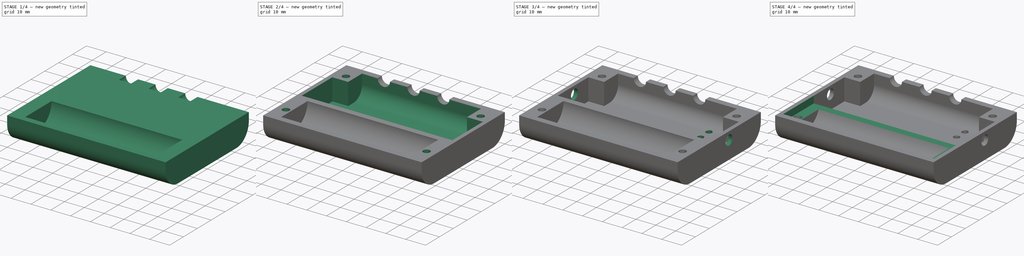
[diagram: build sequence overview — one tinted view per stage of 4, left to right]
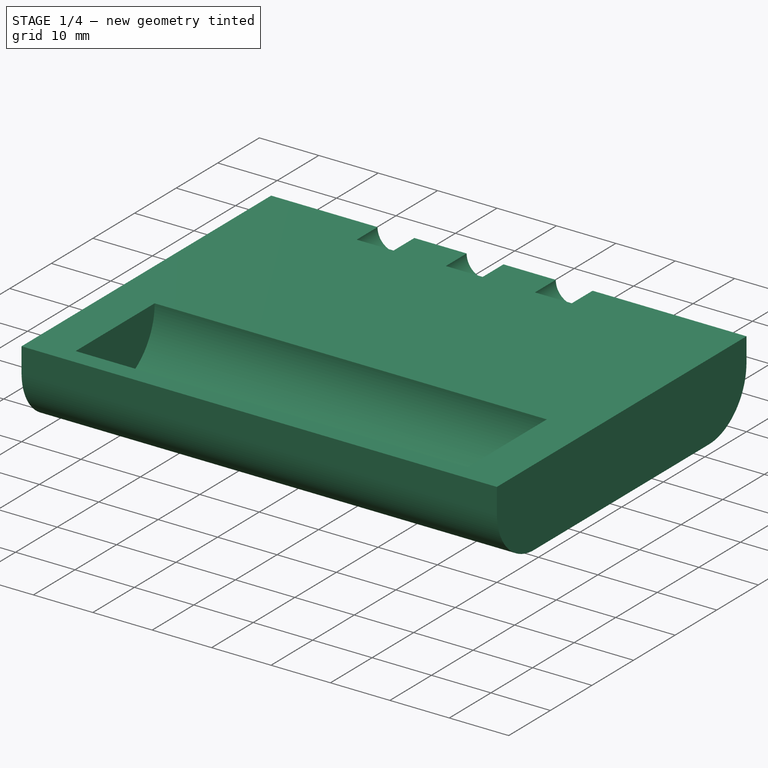
[diagram: stage 1 of 4 — iso view after this stage's code; geometry added in this stage tinted green]
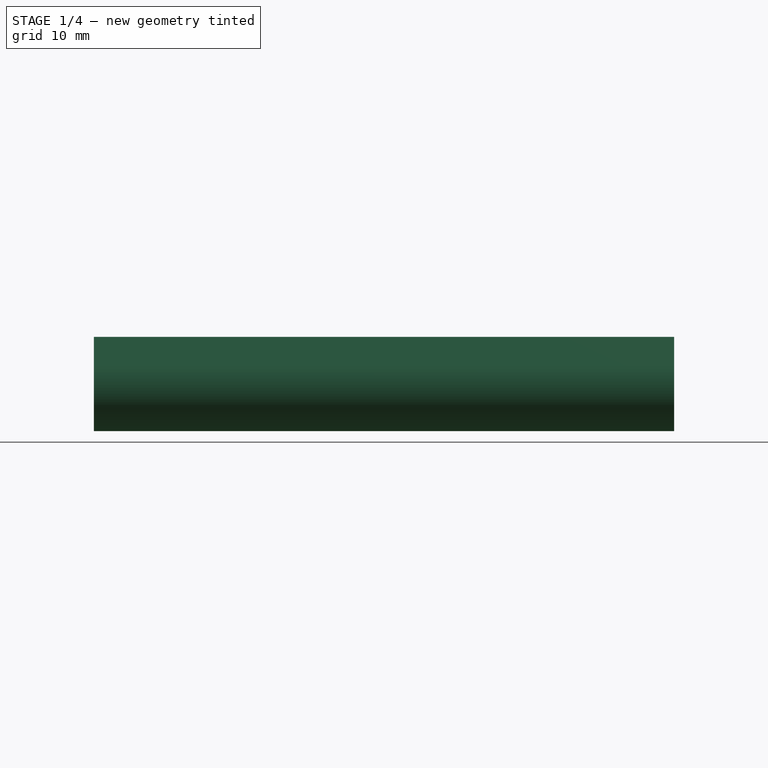
[diagram: stage 1 of 4 — front view after this stage's code; geometry added in this stage tinted green]
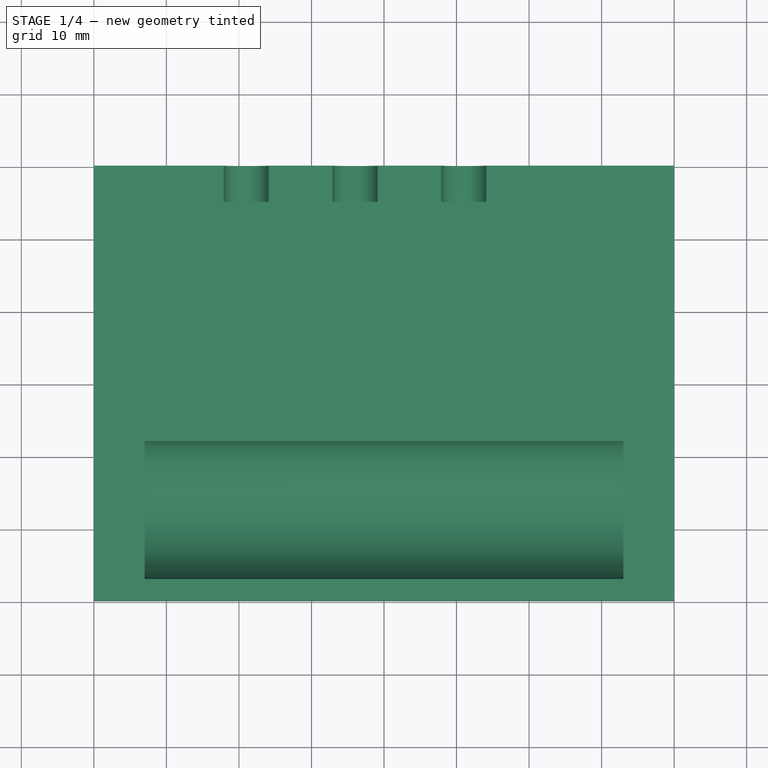
[diagram: stage 1 of 4 — top view after this stage's code; geometry added in this stage tinted green]
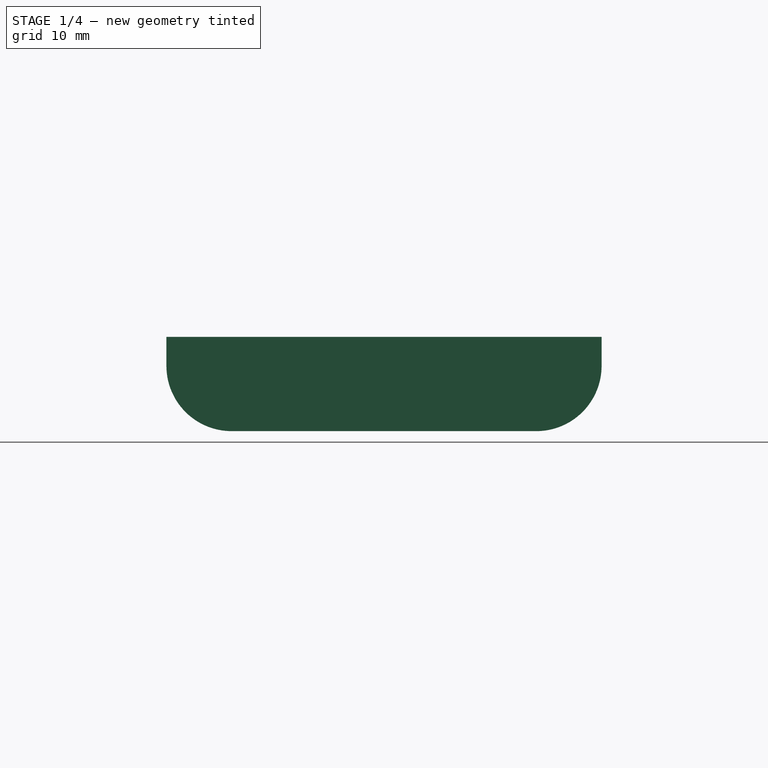
[diagram: stage 1 of 4 — right view after this stage's code; geometry added in this stage tinted green]
FCSTD DOCUMENT  (FreeCAD 0.20R29603 (Git))
Label: OBUDOWA_goraa
License: All rights reserved
LicenseURL: http://en.wikipedia.org/wiki/All_rights_reserved
objects: Sketcher::SketchObject×12, PartDesign::Pocket×11, PartDesign::Pad×1, PartDesign::Body×1
note: 37 computed .brp shape members not serialized (recipe doc carries the construction recipe); baked Part::Feature solids carry a one-line shape summary decoded from their .brp

FEATURE [Sketcher::SketchObject] Sketch
  FullyConstrained = true
  MapMode = 5
  Placement = pos=(0,0,0) rot=(0.57735,0.57735,0.57735;2.0944rad)
  Support = -> [YZ_Plane]
  sketch-geometry (6):
    g0: LineSegment StartX=1.07e-14 StartY=0 StartZ=0 EndX=60 EndY=0 EndZ=0
    g1: LineSegment StartX=60 StartY=0 StartZ=0 EndX=60 EndY=-4 EndZ=0
    g2: LineSegment StartX=51 StartY=-13 StartZ=0 EndX=9 EndY=-13 EndZ=0
    g3: LineSegment StartX=1.07e-14 StartY=-4 StartZ=0 EndX=1.07e-14 EndY=0 EndZ=0
    g4: ArcOfCircle CenterX=51 CenterY=-4 CenterZ=0 NormalX=0 NormalY=0 NormalZ=1 AngleXU=0 Radius=9 StartAngle=4.71239 EndAngle=6.28319
    g5: ArcOfCircle CenterX=9 CenterY=-4 CenterZ=0 NormalX=0 NormalY=0 NormalZ=1 AngleXU=0 Radius=9 StartAngle=3.14159 EndAngle=4.71239
  constraints (15):
    c: Coincident(g0,g1)
    c: Coincident(g3,g0)
    c: Horizontal(g0)
    c: Horizontal(g2)
    c: Vertical(g1)
    c: Vertical(g3)
    c: Coincident(g0,g-1)
    c: DistanceX(g0,g0) = 60
    c: Tangent(g1,g4) = 1.5708
    c: Tangent(g2,g4) = 1.5708
    c: Tangent(g2,g5) = 1.5708
    c: Tangent(g3,g5) = 1.5708
    c: DistanceY(g3,g3) = 4
    c: DistanceY(g1,g1) = 4
    c: Radius(g4) = 9
FEATURE [PartDesign::Pad] Pad
  Direction = (1,-2e-16,3e-16)
  Length = 80
  Length2 = 10
  Placement = pos=(0,0,0) rot=(0.57735,0.57735,0.57735;2.0944rad)
  Profile = -> Sketch
  ReferenceAxis = -> Sketch [N_Axis]
  Type = 0
FEATURE [Sketcher::SketchObject] Sketch001
  FullyConstrained = true
  MapMode = 5
  Placement = pos=(80,-1.76e-14,1.76e-14) rot=(0.57735,0.57735,0.57735;2.0944rad)
  Support = -> [Pad]
  sketch-geometry (1):
    g0: Circle CenterX=12.5 CenterY=0 CenterZ=0 NormalX=0 NormalY=0 NormalZ=1 AngleXU=0 Radius=9.5
  constraints (3):
    c: PointOnObject(g0,g-1)
    c: Diameter(g0) = 19
    c: DistanceX(g-1,g0) = 12.5
FEATURE [PartDesign::Pocket] Pocket  label="Bateria"
  BaseFeature = -> Pad
  Direction = (-1,2e-16,-2e-16)
  Length = 73
  Length2 = -7
  Placement = pos=(0,0,0) rot=(0.57735,0.57735,0.57735;2.0944rad)
  Profile = -> Sketch001
  ReferenceAxis = -> Sketch001 [N_Axis]
  Type = 4
FEATURE [Sketcher::SketchObject] Sketch007
  FullyConstrained = true
  MapMode = 5
  Placement = pos=(3.3e-14,60,-1.3e-14) rot=(0.57735,0.57735,0.57735;4.18879rad)
  sketch-geometry (3):
    g0: Circle CenterX=0 CenterY=51 CenterZ=0 NormalX=0 NormalY=0 NormalZ=1 AngleXU=0 Radius=3.1
    g1: Circle CenterX=0 CenterY=36 CenterZ=0 NormalX=0 NormalY=0 NormalZ=1 AngleXU=0 Radius=3.1
    g2: Circle CenterX=0 CenterY=21 CenterZ=0 NormalX=0 NormalY=0 NormalZ=1 AngleXU=0 Radius=3.1
  constraints (9):
    c: PointOnObject(g0,g-2)
    c: PointOnObject(g1,g-2)
    c: PointOnObject(g2,g-2)
    c: DistanceY(g1,g0) = 15
    c: DistanceY(g2,g1) = 15
    c: Diameter(g0) = 6.2
    c: Diameter(g1) = 6.2
    c: Diameter(g2) = 6.2
    c: DistanceY(g-1,g2) = 21
FEATURE [PartDesign::Pocket] Pocket005
  BaseFeature = -> Pocket
  Direction = (0,-1,0)
  Length = 5
  Length2 = 5
  Placement = pos=(0,0,0) rot=(0.57735,0.57735,0.57735;2.0944rad)
  Profile = -> Sketch007
  ReferenceAxis = -> Sketch007 [N_Axis]
  Type = 0
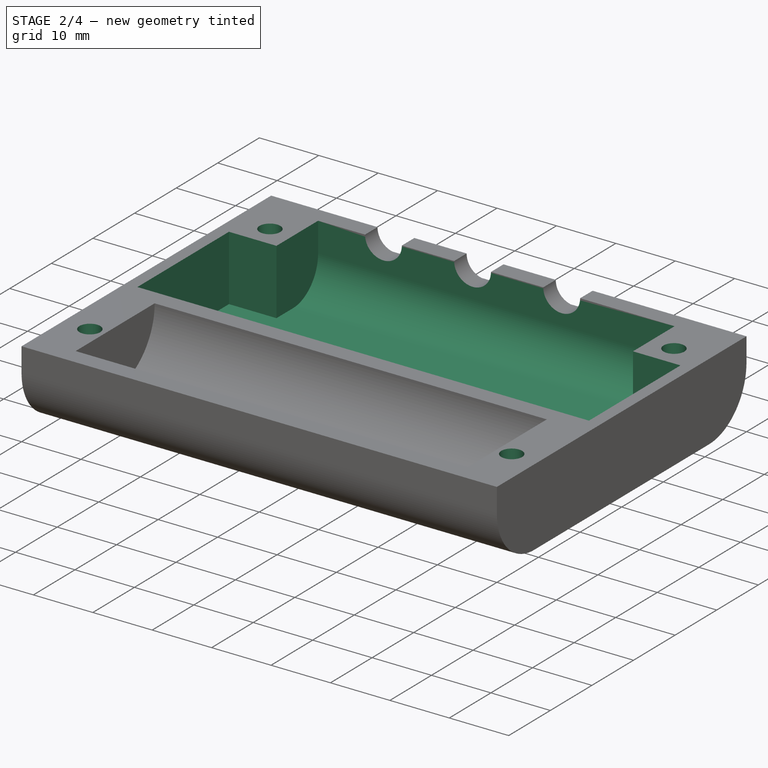
[diagram: stage 2 of 4 — iso view after this stage's code; geometry added in this stage tinted green]
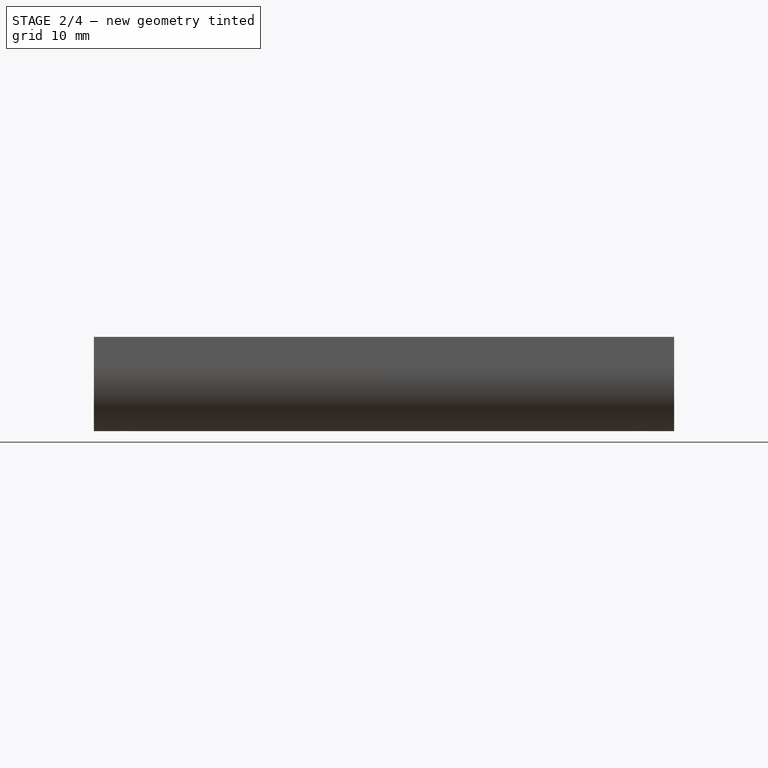
[diagram: stage 2 of 4 — front view after this stage's code; geometry added in this stage tinted green]
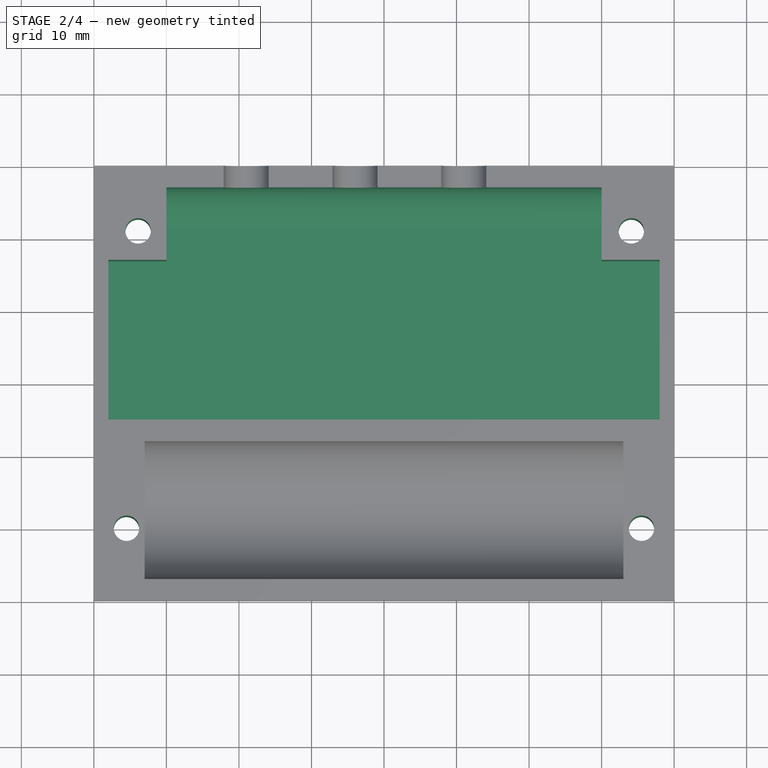
[diagram: stage 2 of 4 — top view after this stage's code; geometry added in this stage tinted green]
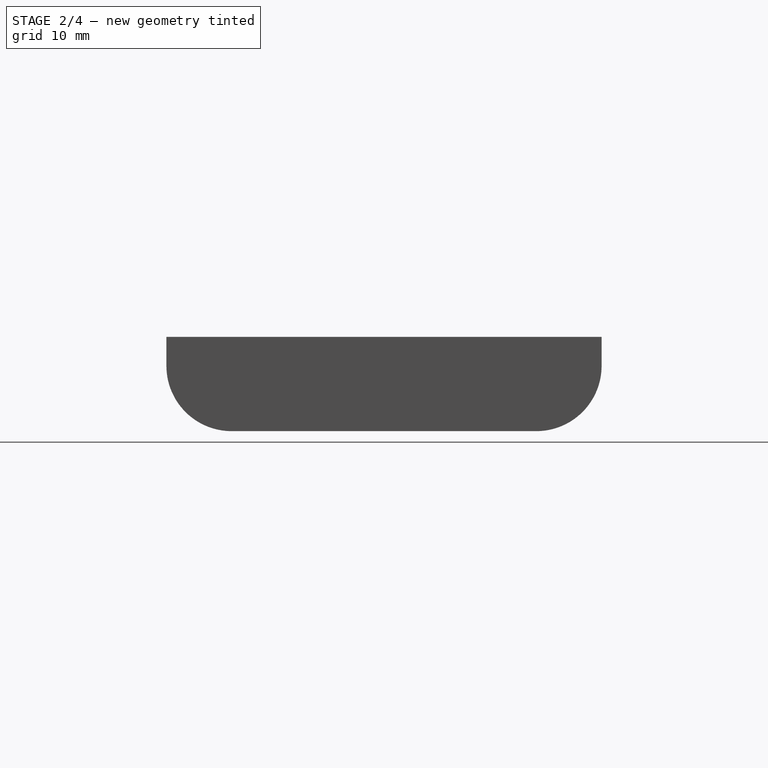
[diagram: stage 2 of 4 — right view after this stage's code; geometry added in this stage tinted green]
FEATURE [Sketcher::SketchObject] Sketch008
  ExternalGeometry = -> [Pocket005]
  FullyConstrained = true
  MapMode = 5
  Placement = pos=(80,-1.76e-14,1.76e-14) rot=(0.57735,0.57735,0.57735;2.0944rad)
  Support = -> [Pocket005]
  sketch-geometry (5):
    g0: LineSegment StartX=57 StartY=0 StartZ=0 EndX=25 EndY=0 EndZ=0
    g1: LineSegment StartX=25 StartY=0 StartZ=0 EndX=25 EndY=-11 EndZ=0
    g2: LineSegment StartX=25 StartY=-11 StartZ=0 EndX=51 EndY=-11 EndZ=0
    g3: LineSegment StartX=57 StartY=-5 StartZ=0 EndX=57 EndY=0 EndZ=0
    g4: ArcOfCircle CenterX=51 CenterY=-5 CenterZ=0 NormalX=0 NormalY=0 NormalZ=1 AngleXU=0 Radius=6 StartAngle=4.71239 EndAngle=6.28319
  constraints (14):
    c: Coincident(g0,g1)
    c: Coincident(g1,g2)
    c: Coincident(g3,g0)
    c: Horizontal(g0)
    c: Horizontal(g2)
    c: Vertical(g1)
    c: Vertical(g3)
    c: PointOnObject(g0,g-1)
    c: DistanceX(g0,g-3) = 3
    c: DistanceY(g-4,g1) = 2
    c: Tangent(g3,g4) = -1.5708
    c: Tangent(g2,g4) = -1.5708
    c: Radius(g4) = 6
    c: DistanceX(g0,g0) = 32
FEATURE [PartDesign::Pocket] Pocket006
  BaseFeature = -> Pocket005
  Direction = (-1,2e-16,-2e-16)
  Length = 70
  Length2 = -10
  Placement = pos=(0,0,0) rot=(0.57735,0.57735,0.57735;2.0944rad)
  Profile = -> Sketch008
  ReferenceAxis = -> Sketch008 [N_Axis]
  Type = 4
FEATURE [Sketcher::SketchObject] Sketch009
  ExternalGeometry = -> [Pocket006]
  FullyConstrained = true
  MapMode = 5
  Placement = pos=(0,0,0) rot=(0,0,-1;1.5708rad)
  Support = -> [Pocket006]
  sketch-geometry (4):
    g0: Circle CenterX=-51 CenterY=74.1 CenterZ=0 NormalX=0 NormalY=0 NormalZ=1 AngleXU=0 Radius=1.75
    g1: Circle CenterX=-10 CenterY=75.5 CenterZ=0 NormalX=0 NormalY=0 NormalZ=1 AngleXU=0 Radius=1.75
    g2: Circle CenterX=-51 CenterY=6.1 CenterZ=0 NormalX=0 NormalY=0 NormalZ=1 AngleXU=0 Radius=1.75
    g3: Circle CenterX=-10 CenterY=4.5 CenterZ=0 NormalX=0 NormalY=0 NormalZ=1 AngleXU=0 Radius=1.75
  constraints (12):
    c: Diameter(g2) = 3.5
    c: Diameter(g3) = 3.5
    c: Diameter(g0) = 3.5
    c: Diameter(g1) = 3.5
    c: DistanceX(g-3,g0) = 9
    c: DistanceX(g1,g-5) = 10
    c: DistanceX(g3,g-5) = 10
    c: DistanceY(g-5,g3) = 4.5
    c: DistanceY(g1,g-5) = 4.5
    c: DistanceY(g0,g-3) = 5.9
    c: DistanceY(g2,g0) = 68
    c: DistanceX(g-4,g2) = 9
FEATURE [PartDesign::Pocket] Pocket007  label="Otworsruby"
  BaseFeature = -> Pocket006
  Direction = (3e-16,-6e-16,-1)
  Length = 5
  Length2 = 5
  Placement = pos=(0,0,0) rot=(0.57735,0.57735,0.57735;2.0944rad)
  Profile = -> Sketch009
  ReferenceAxis = -> Sketch009 [N_Axis]
  Type = 1
FEATURE [Sketcher::SketchObject] Sketch010
  ExternalGeometry = -> [Pocket007]
  FullyConstrained = true
  MapMode = 5
  Placement = pos=(0,0,0) rot=(0,0,-1;1.5708rad)
  Support = -> [Pocket007]
  sketch-geometry (8):
    g0: LineSegment StartX=-25 StartY=70 StartZ=0 EndX=-47 EndY=70 EndZ=0
    g1: LineSegment StartX=-47 StartY=70 StartZ=0 EndX=-47 EndY=78 EndZ=0
    g2: LineSegment StartX=-47 StartY=78 StartZ=0 EndX=-25 EndY=78 EndZ=0
    g3: LineSegment StartX=-25 StartY=78 StartZ=0 EndX=-25 EndY=70 EndZ=0
    g4: LineSegment StartX=-25 StartY=10 StartZ=0 EndX=-47 EndY=10 EndZ=0
    g5: LineSegment StartX=-47 StartY=10 StartZ=0 EndX=-47 EndY=2 EndZ=0
    g6: LineSegment StartX=-47 StartY=2 StartZ=0 EndX=-25 EndY=2 EndZ=0
    g7: LineSegment StartX=-25 StartY=2 StartZ=0 EndX=-25 EndY=10 EndZ=0
  constraints (22):
    c: Coincident(g0,g1)
    c: Coincident(g1,g2)
    c: Coincident(g2,g3)
    c: Coincident(g3,g0)
    c: Horizontal(g0)
    c: Horizontal(g2)
    c: Vertical(g1)
    c: Vertical(g3)
    c: Coincident(g0,g-3)
    c: Coincident(g4,g5)
    c: Coincident(g5,g6)
    c: Coincident(g6,g7)
    c: Coincident(g7,g4)
    c: Horizontal(g4)
    c: Horizontal(g6)
    c: Vertical(g5)
    c: Vertical(g7)
    c: Coincident(g4,g-4)
    c: DistanceX(g4,g4) = 22
    c: DistanceX(g2,g2) = 22
    c: DistanceY(g1,g-5) = 2
    c: DistanceY(g-6,g5) = 2
FEATURE [PartDesign::Pocket] Pocket008
  BaseFeature = -> Pocket007
  Direction = (3e-16,-7e-16,-1)
  Length = 11
  Length2 = 5
  Placement = pos=(0,0,0) rot=(0.57735,0.57735,0.57735;2.0944rad)
  Profile = -> Sketch010
  ReferenceAxis = -> Sketch010 [N_Axis]
  Type = 0
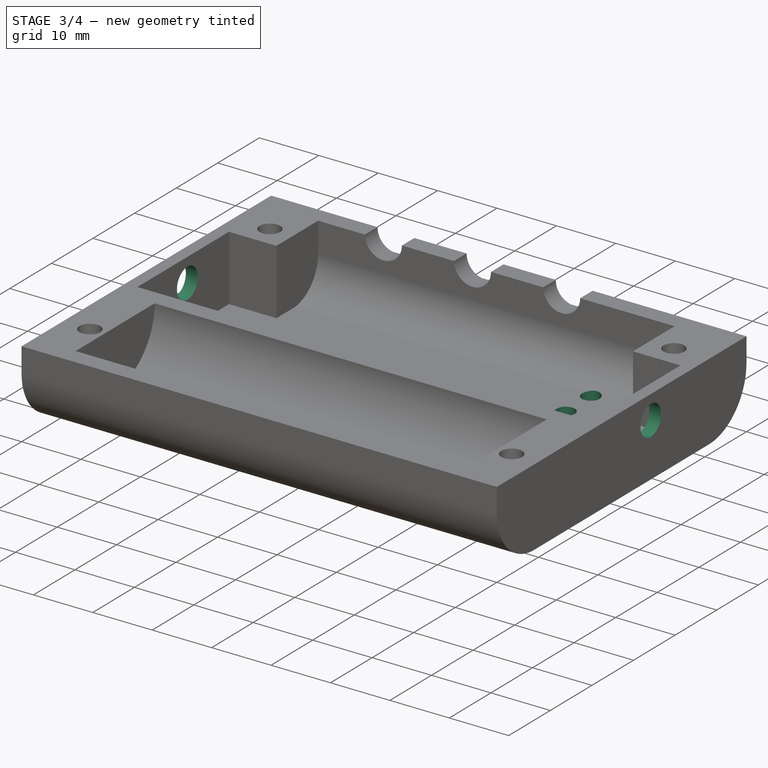
[diagram: stage 3 of 4 — iso view after this stage's code; geometry added in this stage tinted green]
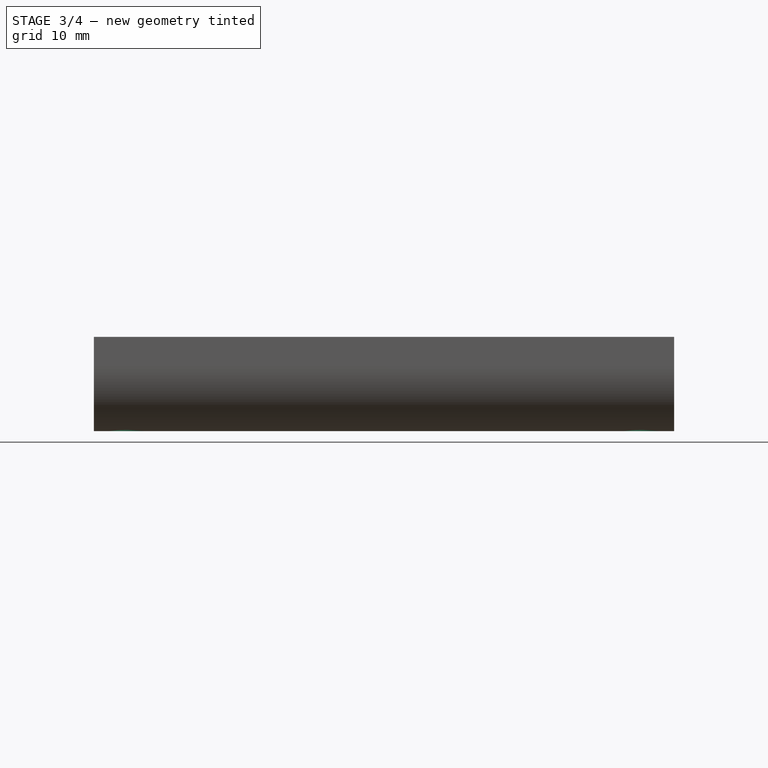
[diagram: stage 3 of 4 — front view after this stage's code; geometry added in this stage tinted green]
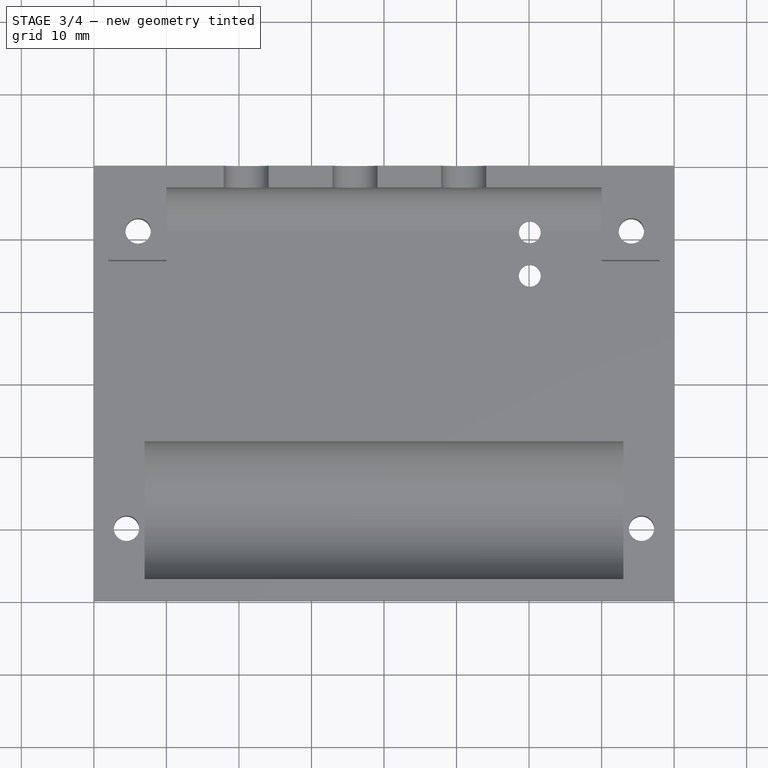
[diagram: stage 3 of 4 — top view after this stage's code; geometry added in this stage tinted green]
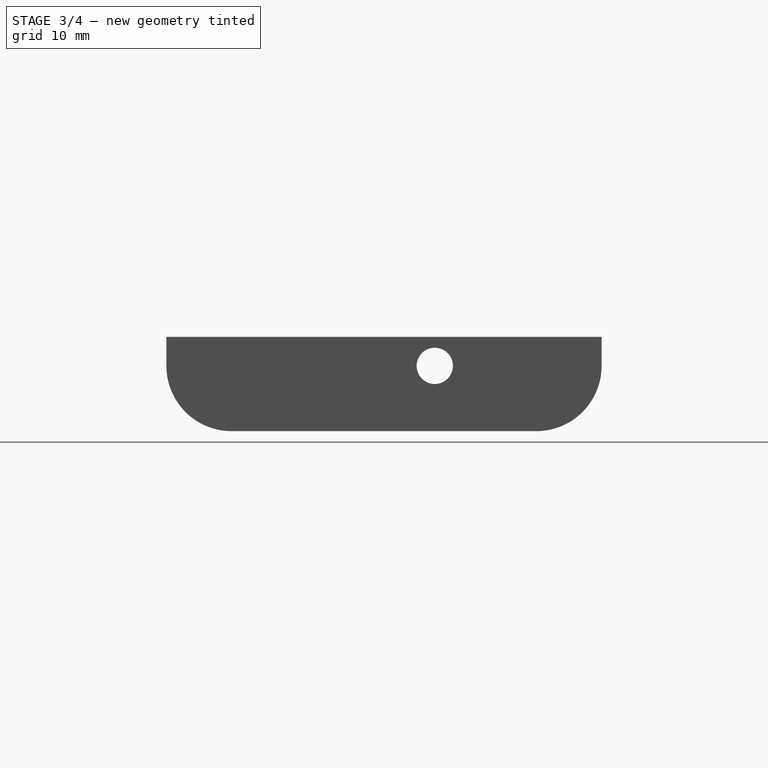
[diagram: stage 3 of 4 — right view after this stage's code; geometry added in this stage tinted green]
FEATURE [Sketcher::SketchObject] Sketch011
  ExternalGeometry = -> [Pocket008]
  FullyConstrained = true
  MapMode = 5
  Placement = pos=(3.6e-15,-5.7e-15,-13) rot=(0.707107,0.707107,0;3.14159rad)
  Support = -> [Pocket008]
  sketch-geometry (2):
    g0: Circle CenterX=51 CenterY=60.1 CenterZ=0 NormalX=0 NormalY=0 NormalZ=1 AngleXU=0 Radius=1.5
    g1: Circle CenterX=45 CenterY=60.1 CenterZ=0 NormalX=0 NormalY=0 NormalZ=1 AngleXU=0 Radius=1.5
  constraints (6):
    c: Diameter(g0) = 3
    c: Diameter(g1) = 3
    c: DistanceY(g0,g-3) = 14
    c: DistanceX(g0,g-3) = 0
    c: DistanceX(g1,g0) = 6
    c: DistanceY(g1,g-3) = 14
FEATURE [PartDesign::Pocket] Pocket009
  BaseFeature = -> Pocket008
  Direction = (-3e-16,7e-16,1)
  Length = 5
  Length2 = 5
  Placement = pos=(0,0,0) rot=(0.57735,0.57735,0.57735;2.0944rad)
  Profile = -> Sketch011
  ReferenceAxis = -> Sketch011 [N_Axis]
  Type = 0
FEATURE [Sketcher::SketchObject] Sketch012
  ExternalGeometry = -> [Pocket009]
  FullyConstrained = true
  MapMode = 5
  Placement = pos=(3.6e-15,-5.7e-15,-13) rot=(0.707107,0.707107,0;3.14159rad)
  Support = -> [Pocket009]
  sketch-geometry (4):
    g0: Circle CenterX=51 CenterY=6.1 CenterZ=0 NormalX=0 NormalY=0 NormalZ=1 AngleXU=0 Radius=2.75
    g1: Circle CenterX=10 CenterY=4.5 CenterZ=0 NormalX=0 NormalY=0 NormalZ=1 AngleXU=0 Radius=2.75
    g2: Circle CenterX=10 CenterY=75.5 CenterZ=0 NormalX=0 NormalY=0 NormalZ=1 AngleXU=0 Radius=2.75
    g3: Circle CenterX=51 CenterY=74.1 CenterZ=0 NormalX=0 NormalY=0 NormalZ=1 AngleXU=0 Radius=2.75
  constraints (8):
    c: Coincident(g0,g-5)
    c: Coincident(g1,g-6)
    c: Coincident(g2,g-4)
    c: Coincident(g3,g-3)
    c: Diameter(g3) = 5.5
    c: Diameter(g2) = 5.5
    c: Diameter(g1) = 5.5
    c: Diameter(g0) = 5.5
FEATURE [PartDesign::Pocket] Pocket010  label="Labki M3"
  BaseFeature = -> Pocket009
  Direction = (-3e-16,4e-16,1)
  Length = 3
  Length2 = 5
  Placement = pos=(0,0,0) rot=(0.57735,0.57735,0.57735;2.0944rad)
  Profile = -> Sketch012
  ReferenceAxis = -> Sketch012 [N_Axis]
  Type = 0
FEATURE [Sketcher::SketchObject] Sketch013
  ExternalGeometry = -> [Pocket010]
  FullyConstrained = true
  MapMode = 5
  Placement = pos=(1.4e-15,0,0) rot=(0.57735,0.57735,-0.57735;4.18879rad)
  Support = -> [Pocket010]
  sketch-geometry (1):
    g0: Circle CenterX=37 CenterY=4 CenterZ=0 NormalX=0 NormalY=0 NormalZ=1 AngleXU=0 Radius=2.5
  constraints (3):
    c: DistanceX(g0,g-3) = 23
    c: DistanceY(g-3,g0) = 4
    c: Diameter(g0) = 5
FEATURE [PartDesign::Pocket] Pocket011
  BaseFeature = -> Pocket010
  Direction = (1,-2e-16,2e-16)
  Length = 5
  Length2 = 5
  Placement = pos=(0,0,0) rot=(0.57735,0.57735,0.57735;2.0944rad)
  Profile = -> Sketch013
  ReferenceAxis = -> Sketch013 [N_Axis]
  Type = 1
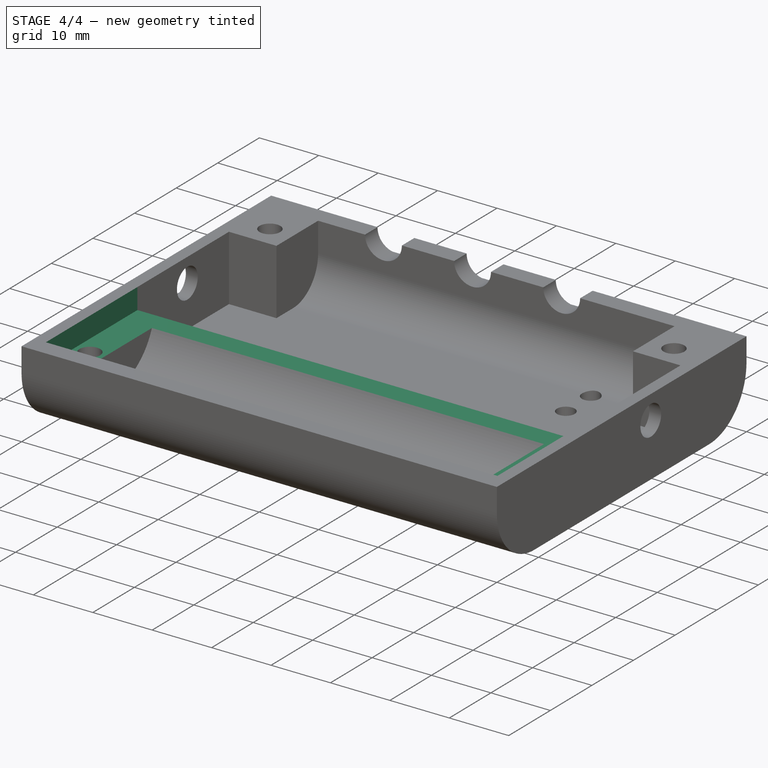
[diagram: stage 4 of 4 — iso view after this stage's code; geometry added in this stage tinted green]
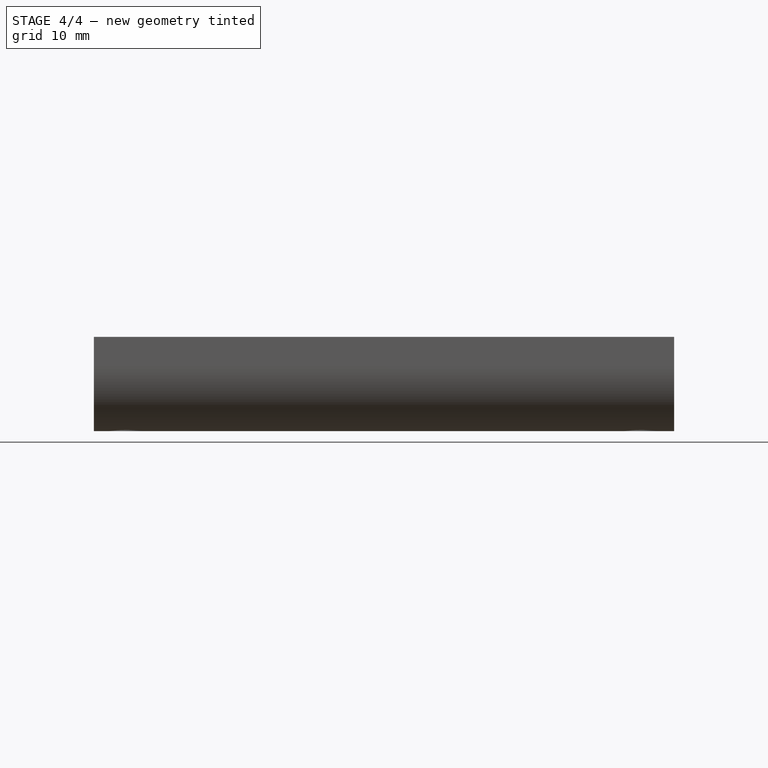
[diagram: stage 4 of 4 — front view after this stage's code; geometry added in this stage tinted green]
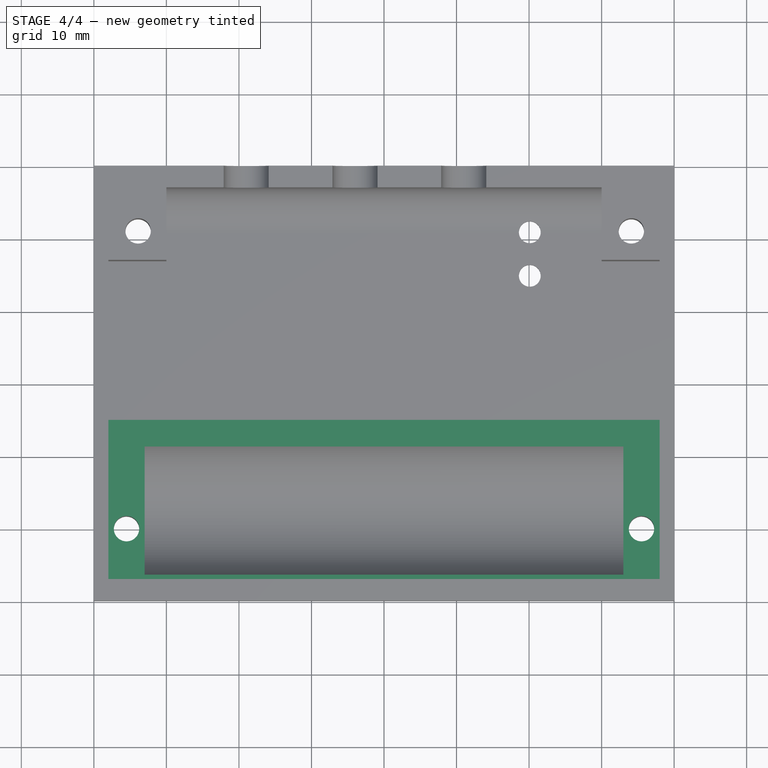
[diagram: stage 4 of 4 — top view after this stage's code; geometry added in this stage tinted green]
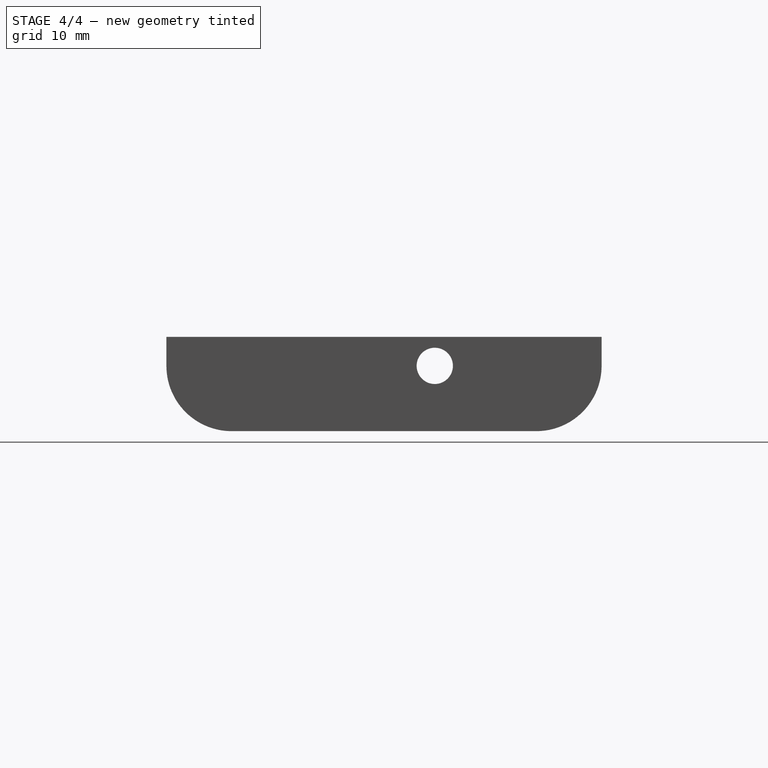
[diagram: stage 4 of 4 — right view after this stage's code; geometry added in this stage tinted green]
FEATURE [Sketcher::SketchObject] Sketch014
  FullyConstrained = true
  MapMode = 5
  Placement = pos=(2.7e-15,0,0) rot=(0.57735,0.57735,-0.57735;4.18879rad)
  Support = -> [Pocket011]
  sketch-geometry (5):
    g0: LineSegment StartX=3 StartY=-3.5 StartZ=0 EndX=3 EndY=3.5 EndZ=0
    g1: LineSegment StartX=3 StartY=3.5 StartZ=0 EndX=26 EndY=3.5 EndZ=0
    g2: LineSegment StartX=26 StartY=3.5 StartZ=0 EndX=26 EndY=-3.5 EndZ=0
    g3: LineSegment StartX=26 StartY=-3.5 StartZ=0 EndX=3 EndY=-3.5 EndZ=0
    g4: GeomPoint X=14.5 Y=0 Z=0
  constraints (13):
    c: Coincident(g0,g1)
    c: Coincident(g1,g2)
    c: Coincident(g2,g3)
    c: Coincident(g3,g0)
    c: Horizontal(g1)
    c: Horizontal(g3)
    c: Vertical(g0)
    c: Vertical(g2)
    c: Symmetric(g1,g0,g4)
    c: PointOnObject(g4,g-1)
    c: DistanceX(g-1,g4) = 14.5
    c: DistanceX(g1,g1) = 23
    c: DistanceY(g2,g2) = 7
FEATURE [PartDesign::Pocket] Pocket012
  BaseFeature = -> Pocket011
  Direction = (1,-2e-16,2e-16)
  Length = 78
  Length2 = -2
  Placement = pos=(0,0,0) rot=(0.57735,0.57735,0.57735;2.0944rad)
  Profile = -> Sketch014
  ReferenceAxis = -> Sketch014 [N_Axis]
  Type = 4
FEATURE [Sketcher::SketchObject] Sketch015
  ExternalGeometry = -> [Pocket012]
  FullyConstrained = true
  MapMode = 5
  Placement = pos=(3.6e-15,-7.9e-15,-13) rot=(0.707107,0.707107,0;3.14159rad)
  Support = -> [Pocket012]
  sketch-geometry (3):
    g0: LineSegment StartX=43.5 StartY=57.6981 StartZ=0 EndX=45 EndY=55.1 EndZ=0
    g1: LineSegment StartX=45 StartY=55.1 StartZ=0 EndX=46.5 EndY=57.6981 EndZ=0
    g2: LineSegment StartX=46.5 StartY=57.6981 StartZ=0 EndX=43.5 EndY=57.6981 EndZ=0
  constraints (9):
    c: Coincident(g1,g0)
    c: Coincident(g2,g1)
    c: Coincident(g2,g0)
    c: Horizontal(g2)
    c: DistanceX(g2,g2) = 3
    c: Distance(g1) = 3
    c: Distance(g0) = 3
    c: DistanceX(g0,g-3) = 0
    c: DistanceY(g0,g-3) = 5
FEATURE [PartDesign::Pocket] Pocket013
  BaseFeature = -> Pocket012
  Direction = (-3e-16,6e-16,1)
  Length = 0.3
  Length2 = 5
  Placement = pos=(0,0,0) rot=(0.57735,0.57735,0.57735;2.0944rad)
  Profile = -> Sketch015
  ReferenceAxis = -> Sketch015 [N_Axis]
  Type = 0
FEATURE [Sketcher::SketchObject] Sketch016
  ExternalGeometry = -> [Pocket013]
  FullyConstrained = true
  MapMode = 5
  Placement = pos=(3.6e-15,-8.6e-15,-13) rot=(0.707107,0.707107,0;3.14159rad)
  Support = -> [Pocket013]
  sketch-geometry (3):
    g0: LineSegment StartX=47.5 StartY=62.5019 StartZ=0 EndX=50.5 EndY=62.5019 EndZ=0
    g1: LineSegment StartX=50.5 StartY=62.5019 StartZ=0 EndX=49 EndY=65.1 EndZ=0
    g2: LineSegment StartX=49 StartY=65.1 StartZ=0 EndX=47.5 EndY=62.5019 EndZ=0
  constraints (9):
    c: Horizontal(g0)
    c: Coincident(g1,g0)
    c: Coincident(g2,g1)
    c: Coincident(g2,g0)
    c: Distance(g1) = 3
    c: Distance(g2) = 3
    c: DistanceX(g0,g0) = 3
    c: DistanceX(g1,g-3) = 2
    c: DistanceY(g-3,g1) = 5
FEATURE [PartDesign::Pocket] Pocket014
  BaseFeature = -> Pocket013
  Direction = (-3e-16,7e-16,1)
  Length = 0.3
  Length2 = 5
  Placement = pos=(0,0,0) rot=(0.57735,0.57735,0.57735;2.0944rad)
  Profile = -> Sketch016
  ReferenceAxis = -> Sketch016 [N_Axis]
  Type = 0
FEATURE [PartDesign::Body] Body
  Group = -> [Sketch,Pad,Sketch001,Pocket,Sketch007,Pocket005,Sketch008,Pocket006,Sketch009,Pocket007,Sketch010,Pocket008,Sketch011,Pocket009,Sketch012,Pocket010,Sketch013,Pocket011,Sketch014,Pocket012,Sketch015,Pocket013,Sketch016,Pocket014]
  Origin = -> Origin
  Tip = -> Pocket014
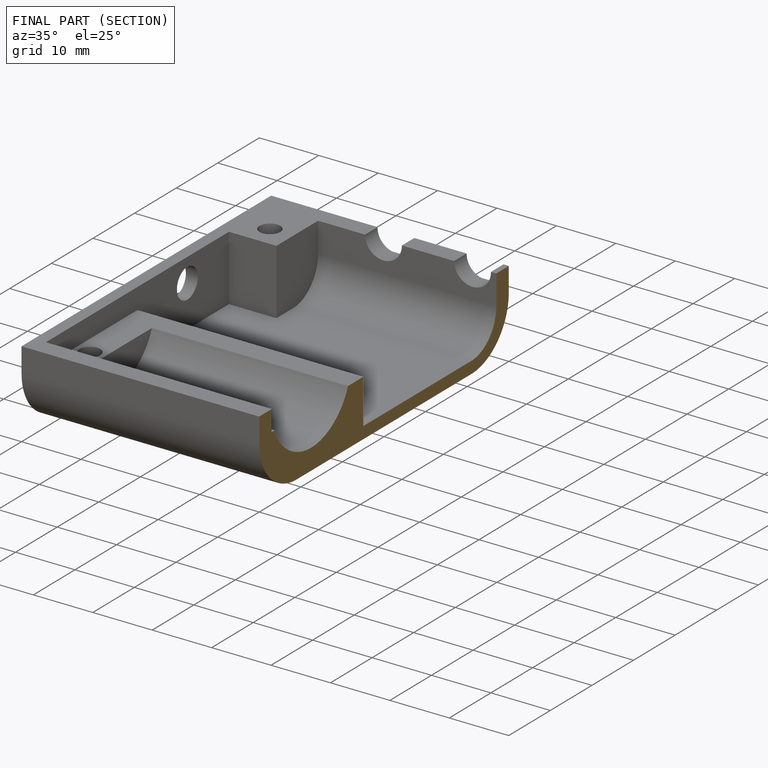
[diagram: finished part — half-section view (interior)]
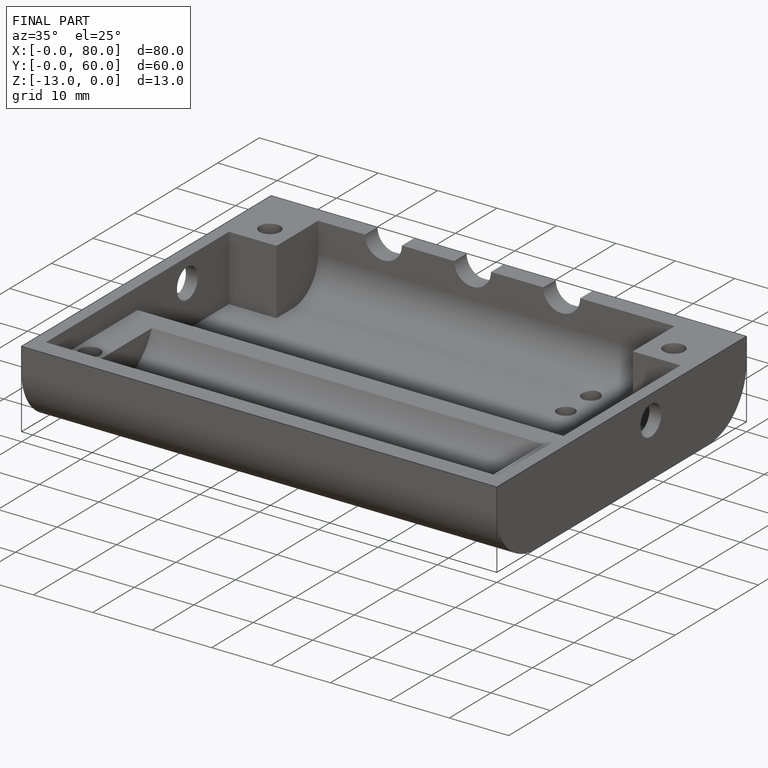
[diagram: finished part — iso view with bounding-box wireframe]
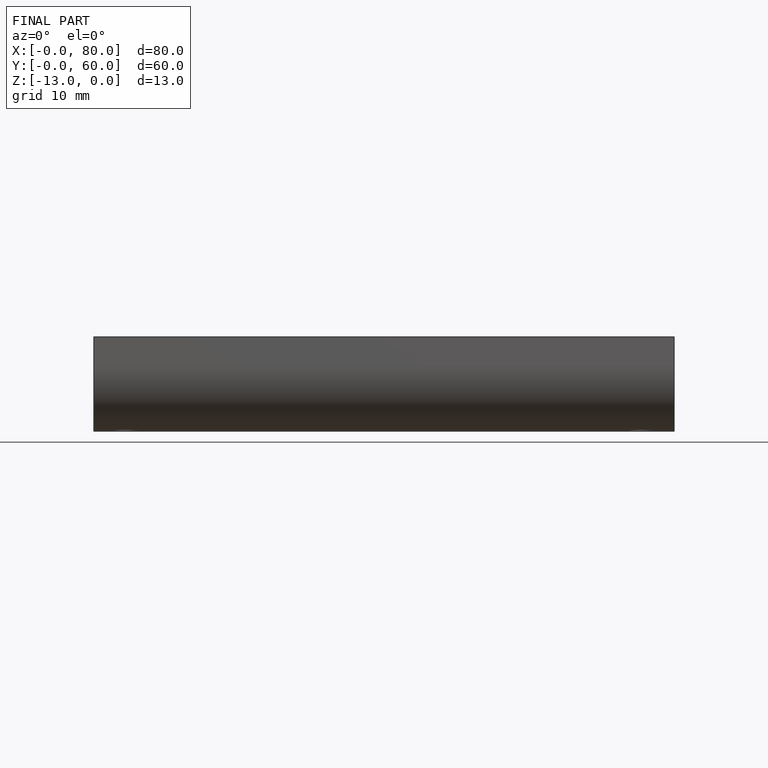
[diagram: finished part — front view with bounding-box wireframe]
